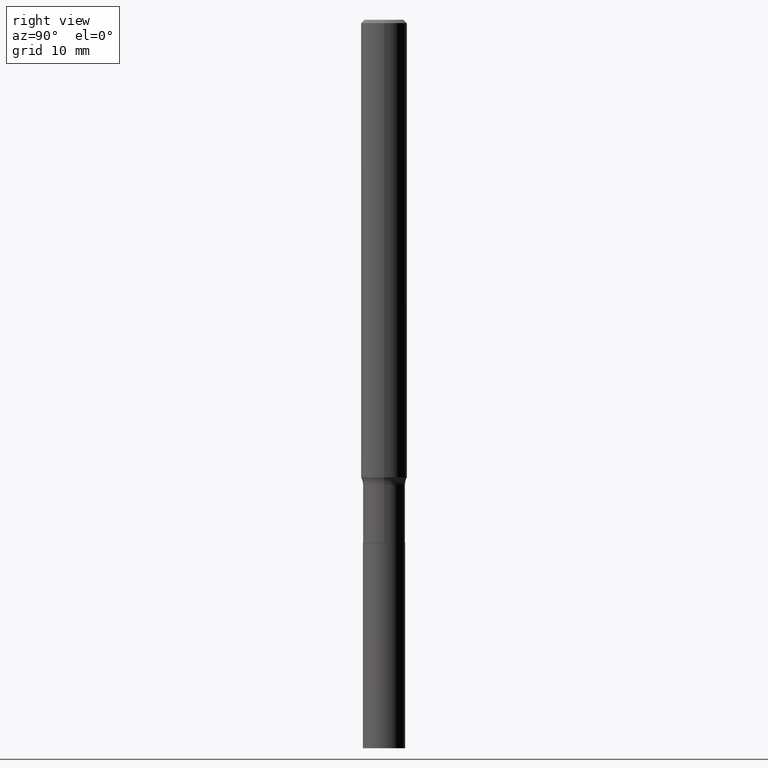
[diagram: clean part render]
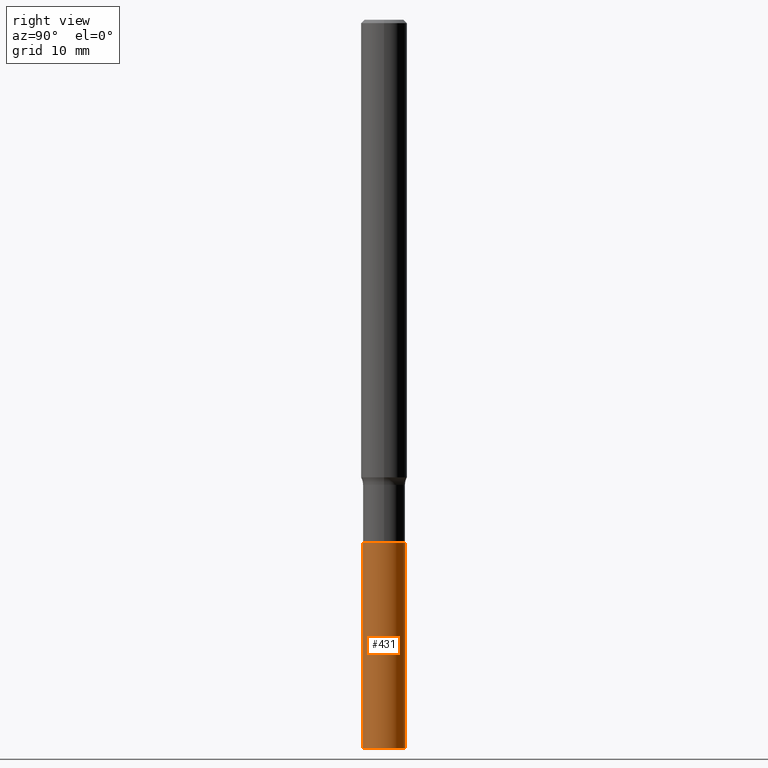
[diagram: same view with one face highlighted and labeled with its STEP entity id]
A machine part, right view. The second image highlights one B-rep face of the part: STEP entity #431.
In plain terms, the highlighted cylindrical surface (edge-blend (fillet) strip) has radius 2.7495 mm, axis along (-0, 0, 1).
Its self-contained STEP definition (entity closure, byte-faithful):
#15 = CARTESIAN_POINT ( 'NONE',  ( 6.566572838368328165E-29, -9.375325691061615108E-15, -2.685200000000000031 ) ) ;
#17 = DIRECTION ( 'NONE',  ( -6.982962677686265922E-15, -1.000000000000000000, 5.047294214622195629E-15 ) ) ;
#22 = AXIS2_PLACEMENT_3D ( 'NONE', #83, #80, #17 ) ;
#25 = CARTESIAN_POINT ( 'NONE',  ( -7.559057098594725883E-16, -0.1082500000000093665, -2.685199999999999587 ) ) ;
#36 = DIRECTION ( 'NONE',  ( -6.982962677686265922E-15, -1.000000000000000000, 5.047294214622194840E-15 ) ) ;
#41 = VERTEX_POINT ( 'NONE', #176 ) ;
#48 = DIRECTION ( 'NONE',  ( -2.439191754325864609E-29, 3.500470434373227708E-15, 1.000000000000000000 ) ) ;
#54 = VERTEX_POINT ( 'NONE', #412 ) ;
#79 = ORIENTED_EDGE ( 'NONE', *, *, #386, .T. ) ;
#80 = DIRECTION ( 'NONE',  ( -2.439191754325864609E-29, 3.500470434373227708E-15, 1.000000000000000000 ) ) ;
#83 = CARTESIAN_POINT ( 'NONE',  ( 6.566572838368328165E-29, -9.375325691061615108E-15, -2.685200000000000031 ) ) ;
#93 = DIRECTION ( 'NONE',  ( -2.439191754325864609E-29, 3.500470434373227708E-15, 1.000000000000000000 ) ) ;
#123 = CARTESIAN_POINT ( 'NONE',  ( 7.691625114603739196E-16, 0.1082499999999906315, -2.685200000000000475 ) ) ;
#128 = VERTEX_POINT ( 'NONE', #375 ) ;
#160 = AXIS2_PLACEMENT_3D ( 'NONE', #15, #48, #286 ) ;
#167 = VECTOR ( 'NONE', #313, 39.37007874015748143 ) ;
#176 = CARTESIAN_POINT ( 'NONE',  ( 7.691625114603868372E-16, 0.1082499999999869539, -3.740200000000001079 ) ) ;
#179 = LINE ( 'NONE', #25, #167 ) ;
#187 = EDGE_LOOP ( 'NONE', ( #79, #296, #219, #202 ) ) ;
#202 = ORIENTED_EDGE ( 'NONE', *, *, #447, .F. ) ;
#219 = ORIENTED_EDGE ( 'NONE', *, *, #420, .F. ) ;
#225 = CARTESIAN_POINT ( 'NONE',  ( -7.559057098594470489E-16, -0.1082500000000130719, -3.740200000000000191 ) ) ;
#234 = AXIS2_PLACEMENT_3D ( 'NONE', #258, #392, #36 ) ;
#258 = CARTESIAN_POINT ( 'NONE',  ( 9.139920139182118548E-29, -1.306832199932537301E-14, -3.740200000000000635 ) ) ;
#286 = DIRECTION ( 'NONE',  ( -6.982962677686265922E-15, -1.000000000000000000, 5.047294214622195629E-15 ) ) ;
#296 = ORIENTED_EDGE ( 'NONE', *, *, #404, .T. ) ;
#313 = DIRECTION ( 'NONE',  ( -2.439191754325864609E-29, 3.500470434373227708E-15, 1.000000000000000000 ) ) ;
#327 = VECTOR ( 'NONE', #93, 39.37007874015748143 ) ;
#328 = FACE_OUTER_BOUND ( 'NONE', #187, .T. ) ;
#361 = CIRCLE ( 'NONE', #160, 0.1082499999999999990 ) ;
#375 = CARTESIAN_POINT ( 'NONE',  ( -7.559057098594725883E-16, -0.1082500000000093665, -2.685199999999999587 ) ) ;
#386 = EDGE_CURVE ( 'NONE', #406, #41, #441, .T. ) ;
#392 = DIRECTION ( 'NONE',  ( -2.439191754325864609E-29, 3.500470434373227708E-15, 1.000000000000000000 ) ) ;
#404 = EDGE_CURVE ( 'NONE', #41, #54, #444, .T. ) ;
#406 = VERTEX_POINT ( 'NONE', #225 ) ;
#412 = CARTESIAN_POINT ( 'NONE',  ( 7.691625114603999520E-16, 0.1082499999999906315, -2.685200000000000475 ) ) ;
#415 = CYLINDRICAL_SURFACE ( 'NONE', #22, 0.1082499999999999990 ) ;
#420 = EDGE_CURVE ( 'NONE', #128, #54, #361, .T. ) ;
#431 = ADVANCED_FACE ( 'NONE', ( #328 ), #415, .T. ) ;
#441 = CIRCLE ( 'NONE', #234, 0.1082500000000000129 ) ;
#444 = LINE ( 'NONE', #123, #327 ) ;
#447 = EDGE_CURVE ( 'NONE', #406, #128, #179, .T. ) ;